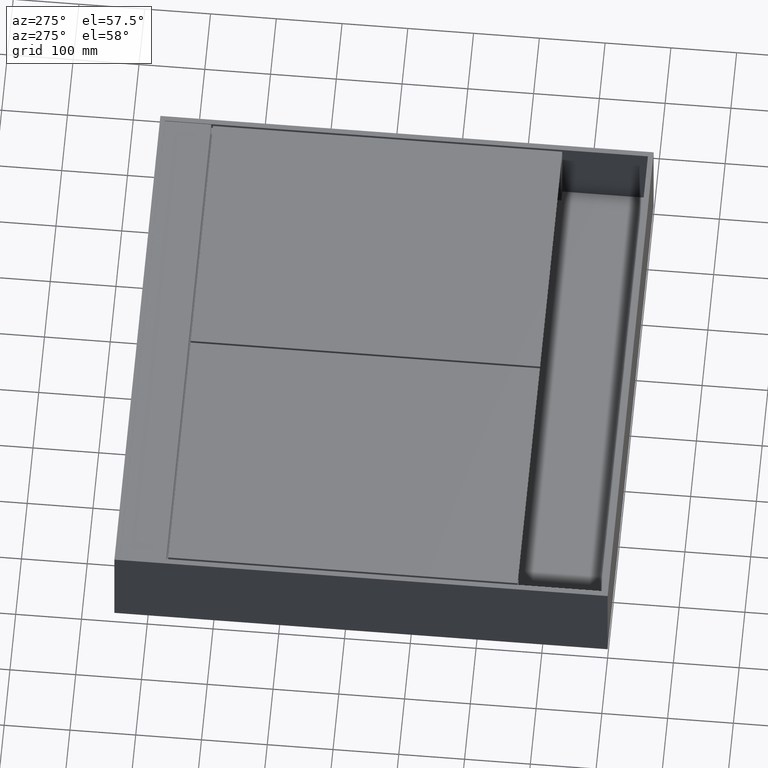
[diagram: clean part render]
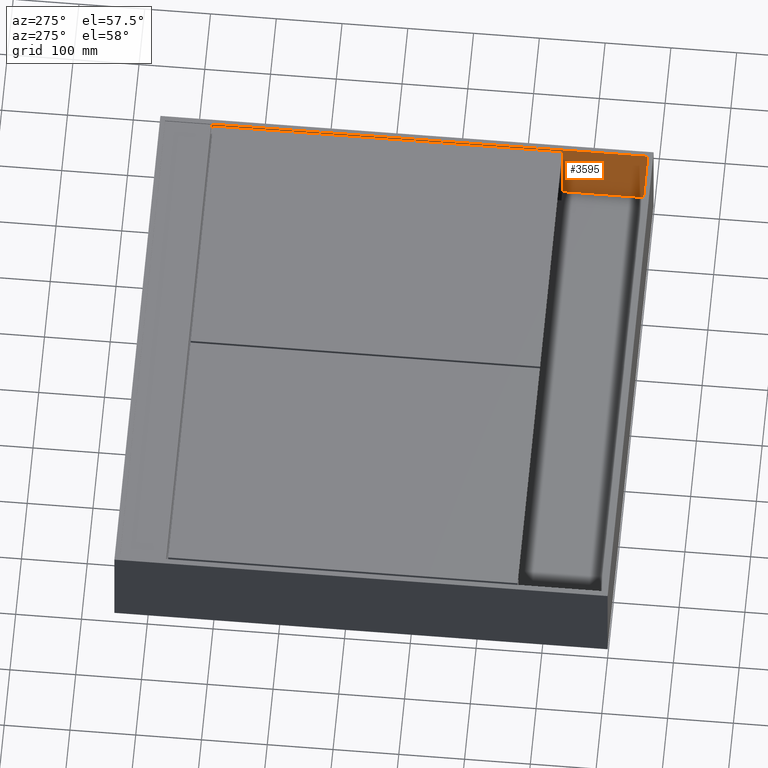
[diagram: same view with one face highlighted and labeled with its STEP entity id]
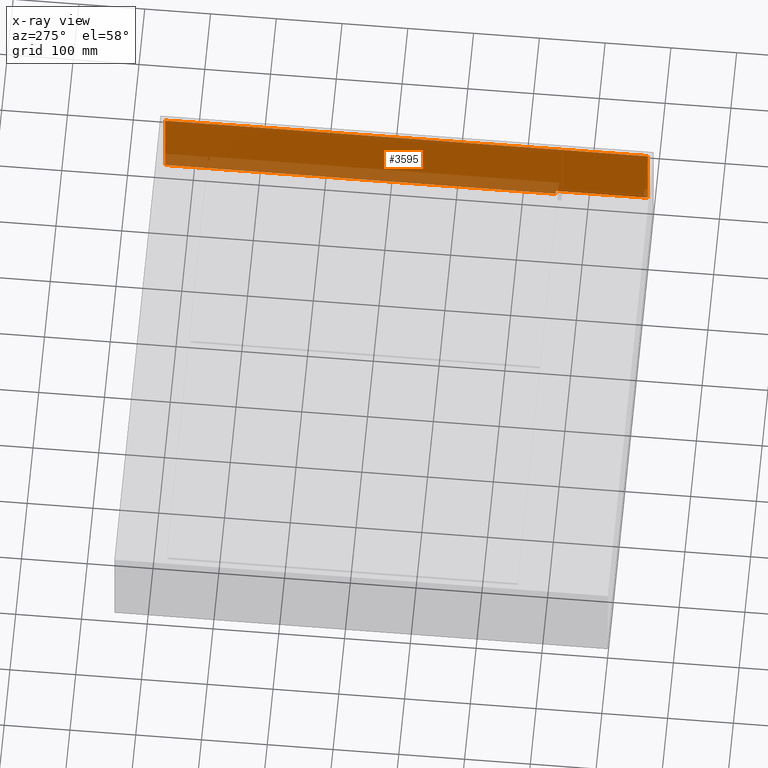
[diagram: x-ray of the same camera — body ghosted, the highlighted face saturated]
A machine part, auxiliary view. The second image highlights one B-rep face of the part: STEP entity #3595.
The next image is the same camera in x-ray: the body ghosted, the highlighted face saturated — about 21% of this face is hidden behind the body in this view.
In plain terms, the highlighted planar face has unit normal (1, -0, 0).
Its self-contained STEP definition (entity closure, byte-faithful):
#62 = VERTEX_POINT ( 'NONE', #3903 ) ;
#265 = VERTEX_POINT ( 'NONE', #10329 ) ;
#346 = DIRECTION ( 'NONE',  ( 1.000000000000000000, -1.355252715606880392E-20, 2.602085213965209871E-18 ) ) ;
#510 = DIRECTION ( 'NONE',  ( -2.602085213965209871E-18, 7.256954775601216229E-19, 1.000000000000000000 ) ) ;
#533 = EDGE_CURVE ( 'NONE', #7656, #10704, #4789, .T. ) ;
#1186 = FACE_OUTER_BOUND ( 'NONE', #4772, .T. ) ;
#1283 = LINE ( 'NONE', #4722, #7717 ) ;
#1506 = ORIENTED_EDGE ( 'NONE', *, *, #533, .T. ) ;
#1519 = LINE ( 'NONE', #4951, #9691 ) ;
#1860 = CARTESIAN_POINT ( 'NONE',  ( 792.0000000000000000, 742.0000000000000000, -150.0000000000000284 ) ) ;
#2196 = EDGE_CURVE ( 'NONE', #7656, #10455, #3762, .T. ) ;
#2245 = EDGE_CURVE ( 'NONE', #265, #9574, #1283, .T. ) ;
#3233 = ORIENTED_EDGE ( 'NONE', *, *, #3742, .F. ) ;
#3595 = ADVANCED_FACE ( 'NONE', ( #1186 ), #4621, .F. ) ;
#3657 = LINE ( 'NONE', #7090, #8966 ) ;
#3742 = EDGE_CURVE ( 'NONE', #62, #9574, #1519, .T. ) ;
#3762 = LINE ( 'NONE', #7199, #9694 ) ;
#3768 = CARTESIAN_POINT ( 'NONE',  ( 792.0000000000000000, 148.0000000000000000, -117.0000000000000711 ) ) ;
#3777 = DIRECTION ( 'NONE',  ( 2.602085213965209871E-18, -7.256954775601216229E-19, -1.000000000000000000 ) ) ;
#3903 = CARTESIAN_POINT ( 'NONE',  ( 792.0000000000000000, 742.0000000000000000, 2.775557561562891351E-14 ) ) ;
#3950 = EDGE_CURVE ( 'NONE', #10704, #265, #3657, .T. ) ;
#4544 = VECTOR ( 'NONE', #5297, 1000.000000000000000 ) ;
#4621 = PLANE ( 'NONE',  #5000 ) ;
#4722 = CARTESIAN_POINT ( 'NONE',  ( 792.0000000000000000, 8.000000000000062172, -150.0000000000000284 ) ) ;
#4772 = EDGE_LOOP ( 'NONE', ( #1506, #6274, #6352, #3233, #7349, #7736 ) ) ;
#4789 = LINE ( 'NONE', #8239, #6382 ) ;
#4951 = CARTESIAN_POINT ( 'NONE',  ( 792.0000000000000000, 900.2131818450031915, 2.775557561562891351E-14 ) ) ;
#5000 = AXIS2_PLACEMENT_3D ( 'NONE', #8068, #346, #3777 ) ;
#5135 = CARTESIAN_POINT ( 'NONE',  ( 792.0000000000000000, 148.0000000000000000, -125.0000000000000568 ) ) ;
#5297 = DIRECTION ( 'NONE',  ( 2.602085213965209871E-18, -7.256954775601216229E-19, -1.000000000000000000 ) ) ;
#5921 = CARTESIAN_POINT ( 'NONE',  ( 792.0000000000000000, 742.0000000000000000, -125.0000000000001705 ) ) ;
#6274 = ORIENTED_EDGE ( 'NONE', *, *, #3950, .T. ) ;
#6352 = ORIENTED_EDGE ( 'NONE', *, *, #2245, .T. ) ;
#6382 = VECTOR ( 'NONE', #510, 1000.000000000000000 ) ;
#7090 = CARTESIAN_POINT ( 'NONE',  ( 792.0000000000000000, 900.2131818450031915, -117.0000000000000000 ) ) ;
#7199 = CARTESIAN_POINT ( 'NONE',  ( 792.0000000000000000, 750.0000000000000000, -125.0000000000001705 ) ) ;
#7349 = ORIENTED_EDGE ( 'NONE', *, *, #9239, .T. ) ;
#7656 = VERTEX_POINT ( 'NONE', #5135 ) ;
#7717 = VECTOR ( 'NONE', #8168, 1000.000000000000000 ) ;
#7736 = ORIENTED_EDGE ( 'NONE', *, *, #2196, .F. ) ;
#8068 = CARTESIAN_POINT ( 'NONE',  ( 792.0000000000000000, 900.2131818450031915, -150.0000000000000284 ) ) ;
#8168 = DIRECTION ( 'NONE',  ( -2.602085213965209871E-18, 7.256954775601216229E-19, 1.000000000000000000 ) ) ;
#8239 = CARTESIAN_POINT ( 'NONE',  ( 792.0000000000000000, 148.0000000000000284, -150.0000000000000284 ) ) ;
#8402 = DIRECTION ( 'NONE',  ( 1.355252715606880543E-20, -1.000000000000000000, -7.256954775601218155E-19 ) ) ;
#8966 = VECTOR ( 'NONE', #10544, 1000.000000000000000 ) ;
#9239 = EDGE_CURVE ( 'NONE', #62, #10455, #9591, .T. ) ;
#9574 = VERTEX_POINT ( 'NONE', #10818 ) ;
#9591 = LINE ( 'NONE', #1860, #4544 ) ;
#9691 = VECTOR ( 'NONE', #8402, 1000.000000000000000 ) ;
#9694 = VECTOR ( 'NONE', #10646, 1000.000000000000000 ) ;
#10329 = CARTESIAN_POINT ( 'NONE',  ( 792.0000000000000000, 8.000000000000007105, -117.0000000000000711 ) ) ;
#10455 = VERTEX_POINT ( 'NONE', #5921 ) ;
#10544 = DIRECTION ( 'NONE',  ( 1.355252715606880543E-20, -1.000000000000000000, -9.700491303708184791E-17 ) ) ;
#10646 = DIRECTION ( 'NONE',  ( -2.710505431213761085E-20, 1.000000000000000000, -1.109494576290517842E-16 ) ) ;
#10704 = VERTEX_POINT ( 'NONE', #3768 ) ;
#10818 = CARTESIAN_POINT ( 'NONE',  ( 792.0000000000000000, 7.999999999999952038, 2.775557561562891351E-14 ) ) ;